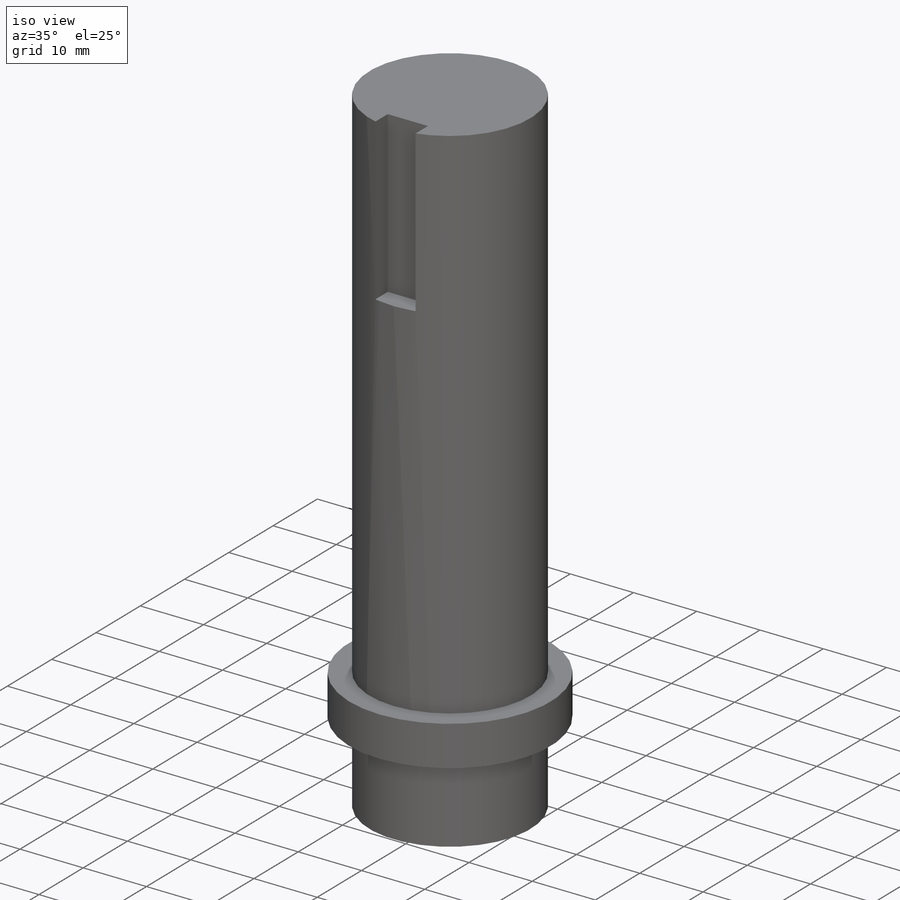
[diagram: iso view]
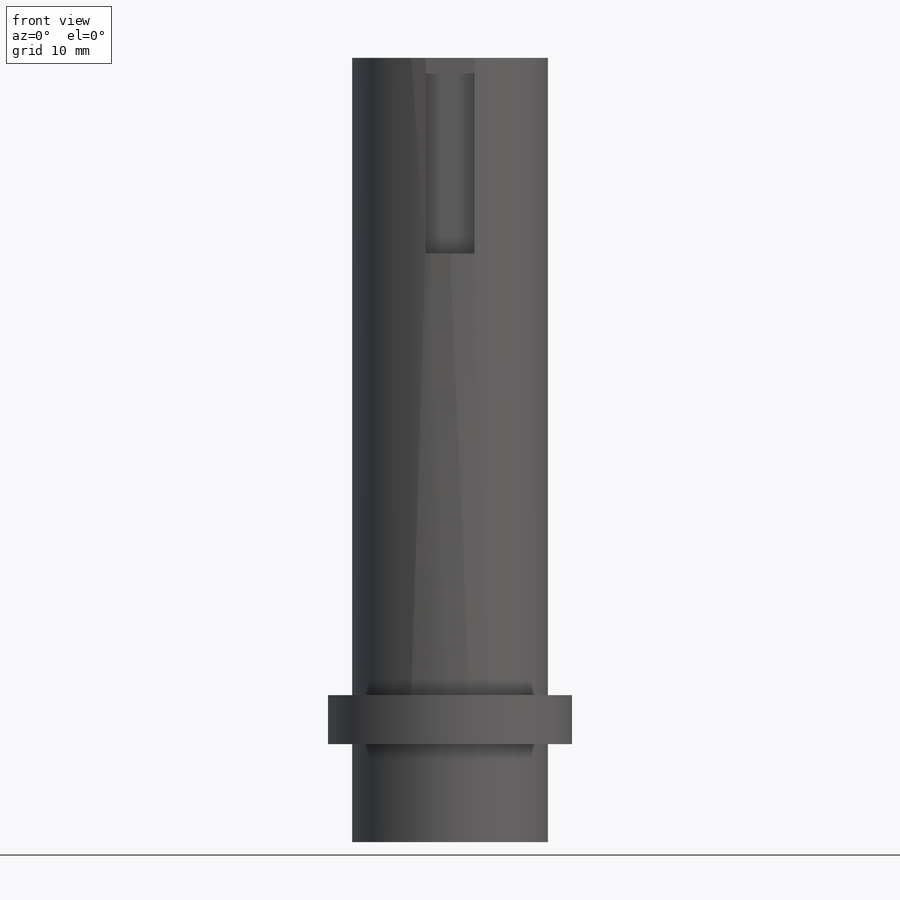
[diagram: front view]
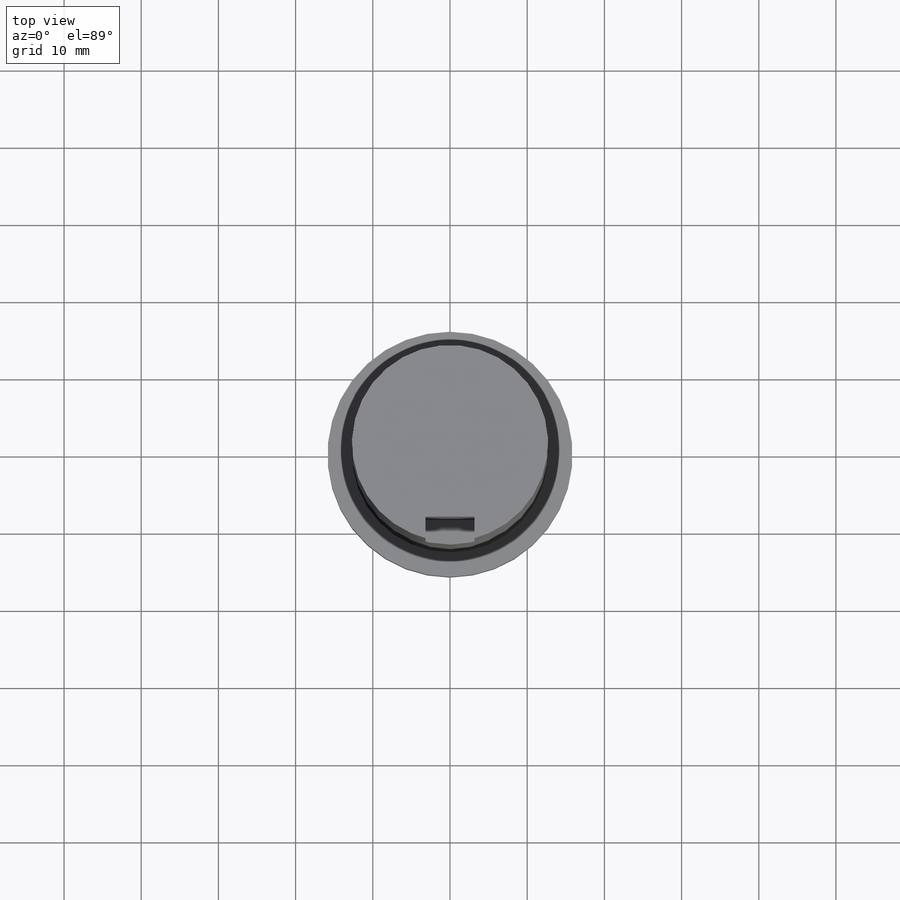
[diagram: top view]
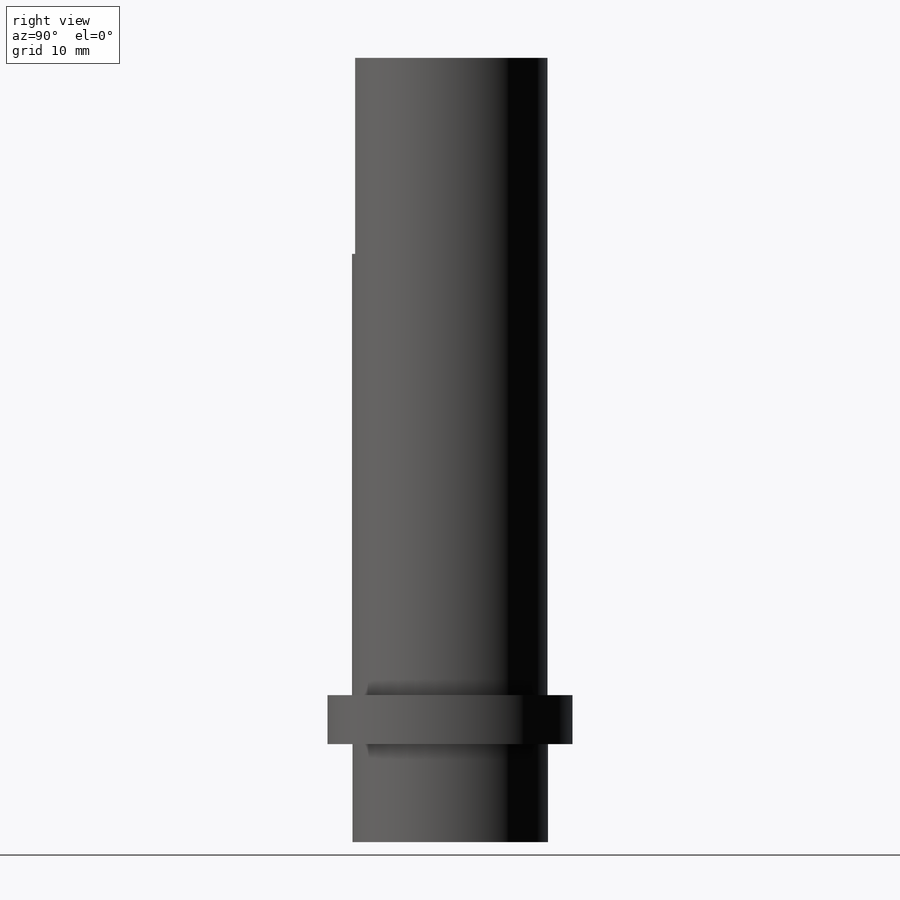
[diagram: right view]
SOLIDWORKS PART (.sldprt)
format: sldprt  version: not decoded by parser v0  size: 135,680 bytes
history: native  units: mm
features: sketch x4, cut_extrude x3, material x1, extrude x1 (+16 scaffold rows collapsed)
feature tree (25):
  scaffold x16  (default folders/planes/origin — collapsed)
  material  "Material <not specified>"
  sketch  "Sketch1"  dims[D1=31.75mm]
  extrude  "Boss-Extrude1"  Depth=101.6mm
  sketch  "Sketch2"  dims[D1=25.4mm]
  cut_extrude  "Cut-Extrude1"  Depth=82.55mm
  sketch  "Sketch3"  dims[D1=6.35mm D2=6.35mm]
  cut_extrude  "Cut-Extrude2"  Depth=25.4mm
  sketch  "Sketch4"  dims[D1=25.4mm]
  cut_extrude  "Cut-Extrude3"  Depth=12.7mm
decode coverage: 8 of 8 modeling features carry decoded parameters
note: suppression state not decoded; provenance and decode notes live in map.json
